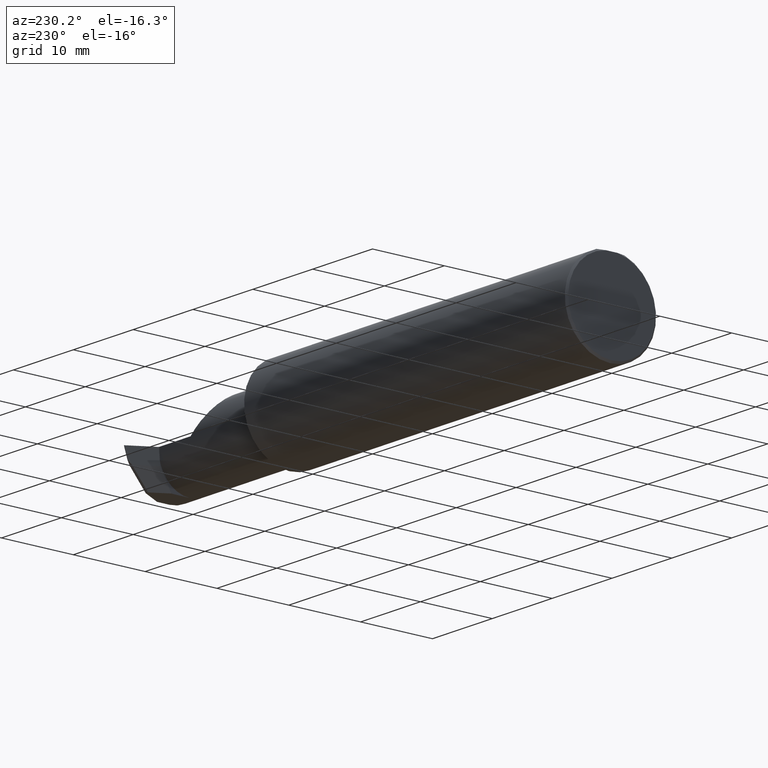
[diagram: clean part render]
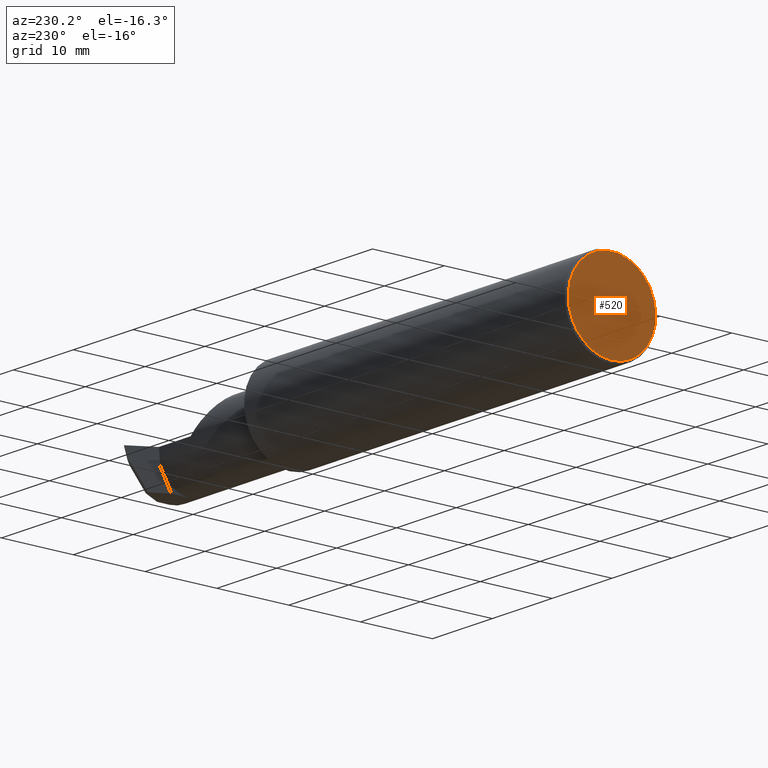
[diagram: same view with one face highlighted and labeled with its STEP entity id]
A machine part, auxiliary view. The second image highlights one B-rep face of the part: STEP entity #520.
In plain terms, the highlighted planar face has unit normal (1, 0, 0).
Its self-contained STEP definition (entity closure, byte-faithful):
#42 = CARTESIAN_POINT ( 'NONE',  ( 0.000000000000000000, 0.2498499999999998500, 0.2378499999999998671 ) ) ;
#81 = CARTESIAN_POINT ( 'NONE',  ( 0.000000000000000000, 0.000000000000000000, 0.000000000000000000 ) ) ;
#131 = CARTESIAN_POINT ( 'NONE',  ( 0.000000000000000000, 0.03090954545120574992, 0.2378499999999998671 ) ) ;
#136 = AXIS2_PLACEMENT_3D ( 'NONE', #722, #224, #505 ) ;
#154 = CIRCLE ( 'NONE', #272, 0.2398500000000001742 ) ;
#166 = ORIENTED_EDGE ( 'NONE', *, *, #210, .T. ) ;
#190 = VERTEX_POINT ( 'NONE', #366 ) ;
#210 = EDGE_CURVE ( 'NONE', #743, #190, #154, .T. ) ;
#224 = DIRECTION ( 'NONE',  ( 1.000000000000000000, 0.000000000000000000, 0.000000000000000000 ) ) ;
#272 = AXIS2_PLACEMENT_3D ( 'NONE', #81, #729, #872 ) ;
#277 = ORIENTED_EDGE ( 'NONE', *, *, #320, .T. ) ;
#320 = EDGE_CURVE ( 'NONE', #190, #660, #328, .T. ) ;
#328 = LINE ( 'NONE', #42, #545 ) ;
#366 = CARTESIAN_POINT ( 'NONE',  ( 0.000000000000000000, -0.03090954545120560767, 0.2378499999999998671 ) ) ;
#392 = AXIS2_PLACEMENT_3D ( 'NONE', #544, #885, #396 ) ;
#396 = DIRECTION ( 'NONE',  ( 0.000000000000000000, 0.000000000000000000, -1.000000000000000000 ) ) ;
#428 = PLANE ( 'NONE',  #136 ) ;
#433 = FACE_OUTER_BOUND ( 'NONE', #535, .T. ) ;
#480 = CIRCLE ( 'NONE', #392, 0.2398500000000001742 ) ;
#505 = DIRECTION ( 'NONE',  ( 0.000000000000000000, 0.000000000000000000, -1.000000000000000000 ) ) ;
#520 = ADVANCED_FACE ( 'NONE', ( #433 ), #428, .F. ) ;
#535 = EDGE_LOOP ( 'NONE', ( #277, #582, #166 ) ) ;
#544 = CARTESIAN_POINT ( 'NONE',  ( 0.000000000000000000, 0.000000000000000000, 0.000000000000000000 ) ) ;
#545 = VECTOR ( 'NONE', #685, 39.37007874015748143 ) ;
#582 = ORIENTED_EDGE ( 'NONE', *, *, #870, .T. ) ;
#639 = CARTESIAN_POINT ( 'NONE',  ( 0.000000000000000000, 0.000000000000000000, -0.2398500000000001742 ) ) ;
#660 = VERTEX_POINT ( 'NONE', #131 ) ;
#685 = DIRECTION ( 'NONE',  ( -0.000000000000000000, 1.000000000000000000, -0.000000000000000000 ) ) ;
#722 = CARTESIAN_POINT ( 'NONE',  ( 0.000000000000000000, 0.000000000000000000, 0.000000000000000000 ) ) ;
#729 = DIRECTION ( 'NONE',  ( -1.000000000000000000, -0.000000000000000000, -0.000000000000000000 ) ) ;
#743 = VERTEX_POINT ( 'NONE', #639 ) ;
#870 = EDGE_CURVE ( 'NONE', #660, #743, #480, .T. ) ;
#872 = DIRECTION ( 'NONE',  ( 0.000000000000000000, 0.000000000000000000, -1.000000000000000000 ) ) ;
#885 = DIRECTION ( 'NONE',  ( -1.000000000000000000, -0.000000000000000000, -0.000000000000000000 ) ) ;